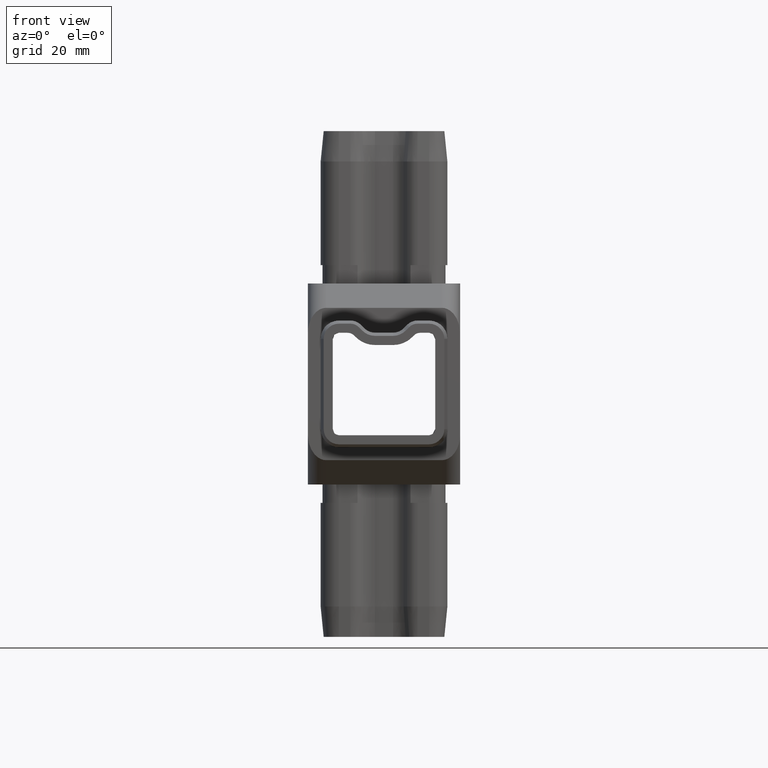
[diagram: clean part render]
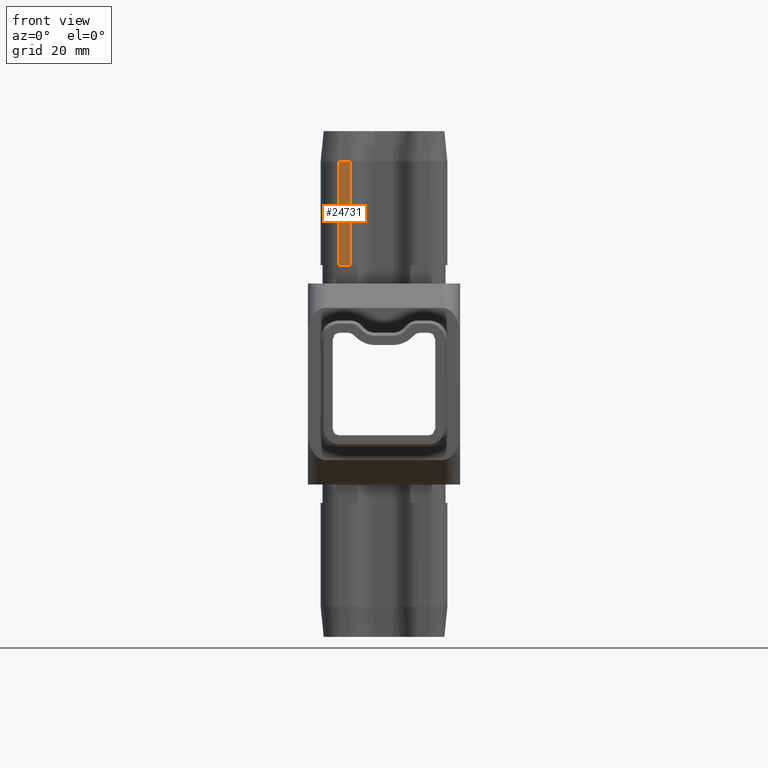
[diagram: same view with one face highlighted and labeled with its STEP entity id]
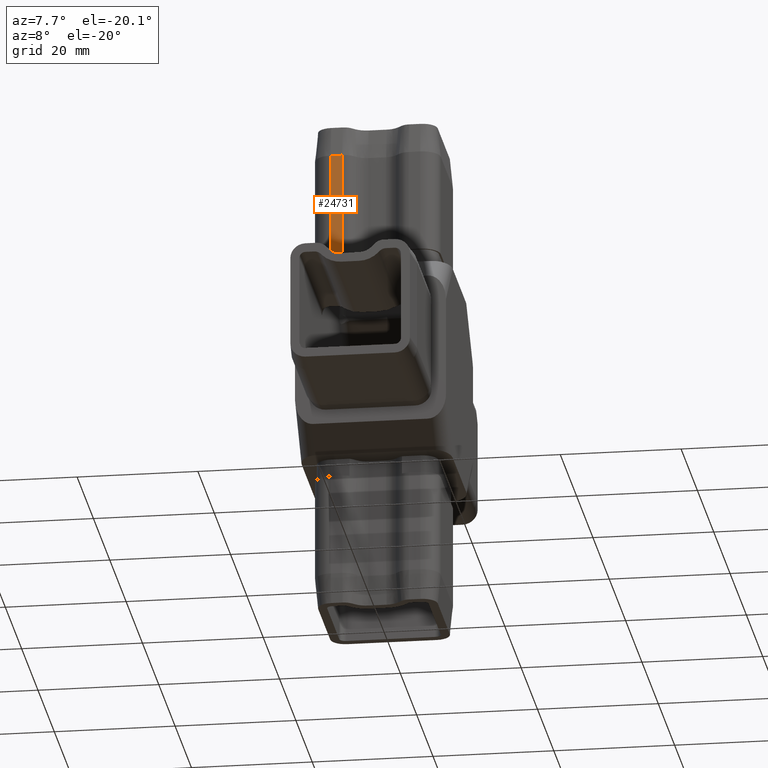
[diagram: same view with one face highlighted and labeled with its STEP entity id]
A machine part, front view. The second image highlights one B-rep face of the part: STEP entity #24731.
A second angle (auxiliary view) of the same face is appended — the face is thin or edge-on in the first view.
In plain terms, the highlighted planar face has unit normal (-0, 1, 0).
Its self-contained STEP definition (entity closure, byte-faithful):
#658 = AXIS2_PLACEMENT_3D ( 'NONE', #5453, #29426, #24619 ) ;
#1362 = LINE ( 'NONE', #25659, #24029 ) ;
#1374 = VERTEX_POINT ( 'NONE', #27341 ) ;
#1834 = EDGE_CURVE ( 'NONE', #21487, #1374, #13164, .T. ) ;
#1963 = LINE ( 'NONE', #15242, #11782 ) ;
#3316 = CARTESIAN_POINT ( 'NONE',  ( -5.518574986800868700, -10.40000000000000000, 36.50000000000001400 ) ) ;
#4371 = EDGE_CURVE ( 'NONE', #9400, #21487, #9678, .T. ) ;
#4861 = EDGE_CURVE ( 'NONE', #24043, #1374, #1362, .T. ) ;
#5453 = CARTESIAN_POINT ( 'NONE',  ( -5.518574986800868700, -10.40000000000000200, 41.50000000000000000 ) ) ;
#6106 = DIRECTION ( 'NONE',  ( -0.0000000000000000000, -0.0000000000000000000, -1.000000000000000000 ) ) ;
#6425 = DIRECTION ( 'NONE',  ( -1.000000000000000000, -2.344220913482171700E-016, 0.0000000000000000000 ) ) ;
#9400 = VERTEX_POINT ( 'NONE', #3316 ) ;
#9678 = LINE ( 'NONE', #27891, #27424 ) ;
#11782 = VECTOR ( 'NONE', #30313, 1000.000000000000000 ) ;
#11963 = CARTESIAN_POINT ( 'NONE',  ( -7.400000000000002100, -10.40000000000000200, 36.50000000000001400 ) ) ;
#12316 = FACE_OUTER_BOUND ( 'NONE', #29607, .T. ) ;
#13164 = LINE ( 'NONE', #13627, #20759 ) ;
#13627 = CARTESIAN_POINT ( 'NONE',  ( -7.400000000000002100, -10.40000000000000200, 41.50000000000000000 ) ) ;
#14133 = CARTESIAN_POINT ( 'NONE',  ( -5.518574986800866900, -10.40000000000000200, 19.50000000000000000 ) ) ;
#14540 = ORIENTED_EDGE ( 'NONE', *, *, #4861, .F. ) ;
#15242 = CARTESIAN_POINT ( 'NONE',  ( -5.518574986800867800, -10.40000000000000200, 41.50000000000000000 ) ) ;
#19856 = PLANE ( 'NONE',  #658 ) ;
#19897 = ORIENTED_EDGE ( 'NONE', *, *, #4371, .T. ) ;
#20746 = DIRECTION ( 'NONE',  ( -1.000000000000000000, -9.220263703346442400E-016, 0.0000000000000000000 ) ) ;
#20759 = VECTOR ( 'NONE', #6106, 1000.000000000000000 ) ;
#21487 = VERTEX_POINT ( 'NONE', #11963 ) ;
#24029 = VECTOR ( 'NONE', #6425, 1000.000000000000000 ) ;
#24043 = VERTEX_POINT ( 'NONE', #14133 ) ;
#24619 = DIRECTION ( 'NONE',  ( -1.000000000000000000, -9.220263703346442400E-016, 0.0000000000000000000 ) ) ;
#24731 = ADVANCED_FACE ( 'NONE', ( #12316 ), #19856, .F. ) ;
#25659 = CARTESIAN_POINT ( 'NONE',  ( 7.399999999999995000, -10.40000000000000000, 19.50000000000000000 ) ) ;
#26934 = EDGE_CURVE ( 'NONE', #9400, #24043, #1963, .T. ) ;
#27341 = CARTESIAN_POINT ( 'NONE',  ( -7.400000000000005700, -10.40000000000000200, 19.50000000000000000 ) ) ;
#27424 = VECTOR ( 'NONE', #20746, 1000.000000000000000 ) ;
#27827 = ORIENTED_EDGE ( 'NONE', *, *, #1834, .T. ) ;
#27891 = CARTESIAN_POINT ( 'NONE',  ( -5.518574986800868700, -10.40000000000000000, 36.50000000000001400 ) ) ;
#28613 = ORIENTED_EDGE ( 'NONE', *, *, #26934, .F. ) ;
#29426 = DIRECTION ( 'NONE',  ( -9.220263703346442400E-016, 1.000000000000000000, 0.0000000000000000000 ) ) ;
#29607 = EDGE_LOOP ( 'NONE', ( #28613, #19897, #27827, #14540 ) ) ;
#30313 = DIRECTION ( 'NONE',  ( -0.0000000000000000000, -0.0000000000000000000, -1.000000000000000000 ) ) ;